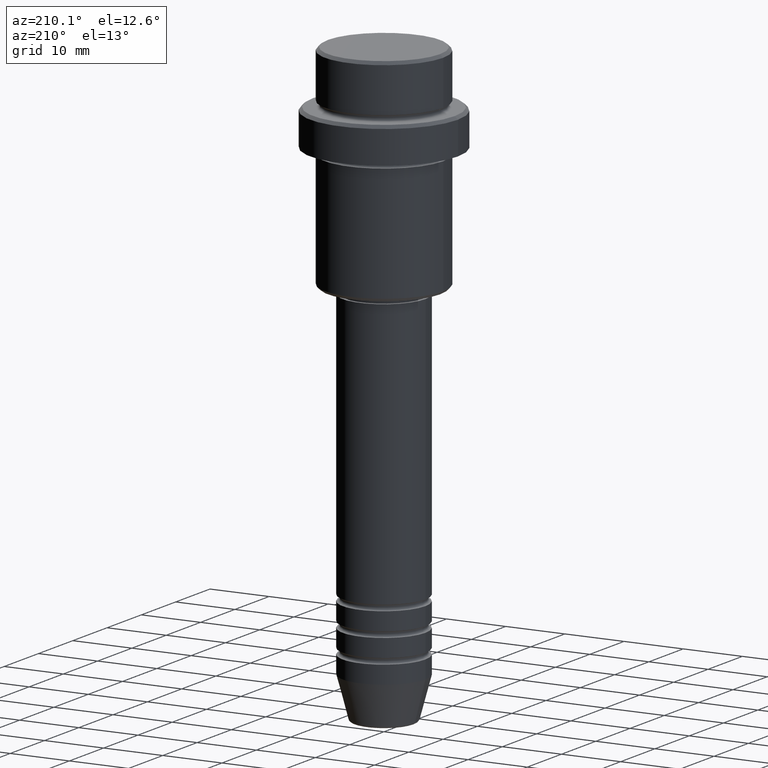
[diagram: clean part render]
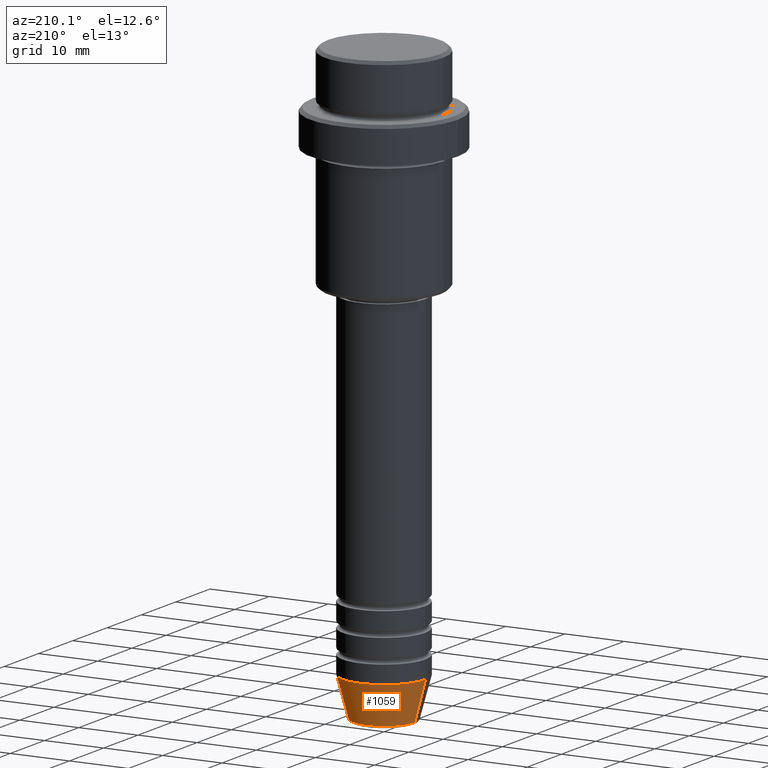
[diagram: same view with one face highlighted and labeled with its STEP entity id]
A machine part, auxiliary view. The second image highlights one B-rep face of the part: STEP entity #1059.
In plain terms, the highlighted conical surface has half-angle 15 deg.
Its self-contained STEP definition (entity closure, byte-faithful):
#41 = CIRCLE ( 'NONE', #499, 5.223655072137187716 ) ;
#67 = CIRCLE ( 'NONE', #695, 7.000000000000000000 ) ;
#78 = ORIENTED_EDGE ( 'NONE', *, *, #546, .F. ) ;
#100 = FACE_OUTER_BOUND ( 'NONE', #1108, .T. ) ;
#134 = VECTOR ( 'NONE', #562, 1000.000000000000000 ) ;
#191 = DIRECTION ( 'NONE',  ( 1.000000000000000000, 0.000000000000000000, 0.000000000000000000 ) ) ;
#284 = VERTEX_POINT ( 'NONE', #902 ) ;
#354 = DIRECTION ( 'NONE',  ( -0.2588190451025214056, 3.169619151431772953E-17, 0.9659258262890680902 ) ) ;
#393 = CARTESIAN_POINT ( 'NONE',  ( 5.223655072137187716, 0.000000000000000000, -100.6294095225512706 ) ) ;
#474 = ORIENTED_EDGE ( 'NONE', *, *, #1049, .F. ) ;
#484 = EDGE_CURVE ( 'NONE', #803, #1156, #1106, .T. ) ;
#499 = AXIS2_PLACEMENT_3D ( 'NONE', #994, #754, #1210 ) ;
#502 = AXIS2_PLACEMENT_3D ( 'NONE', #1051, #619, #1407 ) ;
#529 = EDGE_CURVE ( 'NONE', #686, #803, #41, .T. ) ;
#546 = EDGE_CURVE ( 'NONE', #686, #284, #1194, .T. ) ;
#562 = DIRECTION ( 'NONE',  ( 0.2588190451025214056, 0.000000000000000000, 0.9659258262890680902 ) ) ;
#619 = DIRECTION ( 'NONE',  ( -0.000000000000000000, -0.000000000000000000, 1.000000000000000000 ) ) ;
#681 = ORIENTED_EDGE ( 'NONE', *, *, #529, .T. ) ;
#686 = VERTEX_POINT ( 'NONE', #393 ) ;
#695 = AXIS2_PLACEMENT_3D ( 'NONE', #825, #733, #191 ) ;
#733 = DIRECTION ( 'NONE',  ( -0.000000000000000000, -0.000000000000000000, 1.000000000000000000 ) ) ;
#754 = DIRECTION ( 'NONE',  ( -0.000000000000000000, -0.000000000000000000, 1.000000000000000000 ) ) ;
#761 = CARTESIAN_POINT ( 'NONE',  ( 7.000000000000000000, 0.000000000000000000, -94.00000000000000000 ) ) ;
#803 = VERTEX_POINT ( 'NONE', #846 ) ;
#825 = CARTESIAN_POINT ( 'NONE',  ( 0.000000000000000000, 0.000000000000000000, -94.00000000000000000 ) ) ;
#846 = CARTESIAN_POINT ( 'NONE',  ( -5.223655072137187716, 7.484830028987059188E-16, -100.6294095225512706 ) ) ;
#902 = CARTESIAN_POINT ( 'NONE',  ( 7.000000000000000000, 0.000000000000000000, -94.00000000000000000 ) ) ;
#975 = VECTOR ( 'NONE', #354, 1000.000000000000000 ) ;
#977 = CARTESIAN_POINT ( 'NONE',  ( -7.000000000000000000, 8.572527594031473190E-16, -94.00000000000000000 ) ) ;
#993 = ORIENTED_EDGE ( 'NONE', *, *, #484, .T. ) ;
#994 = CARTESIAN_POINT ( 'NONE',  ( 0.000000000000000000, 0.000000000000000000, -100.6294095225512706 ) ) ;
#1049 = EDGE_CURVE ( 'NONE', #284, #1156, #67, .T. ) ;
#1051 = CARTESIAN_POINT ( 'NONE',  ( 0.000000000000000000, 0.000000000000000000, -94.00000000000000000 ) ) ;
#1059 = ADVANCED_FACE ( 'NONE', ( #100 ), #1348, .T. ) ;
#1106 = LINE ( 'NONE', #977, #975 ) ;
#1108 = EDGE_LOOP ( 'NONE', ( #681, #993, #474, #78 ) ) ;
#1156 = VERTEX_POINT ( 'NONE', #1219 ) ;
#1194 = LINE ( 'NONE', #761, #134 ) ;
#1210 = DIRECTION ( 'NONE',  ( 1.000000000000000000, 0.000000000000000000, 0.000000000000000000 ) ) ;
#1219 = CARTESIAN_POINT ( 'NONE',  ( -7.000000000000000000, 8.572527594031473190E-16, -94.00000000000000000 ) ) ;
#1348 = CONICAL_SURFACE ( 'NONE', #502, 7.000000000000000000, 0.2617993877991501295 ) ;
#1407 = DIRECTION ( 'NONE',  ( 1.000000000000000000, 0.000000000000000000, 0.000000000000000000 ) ) ;